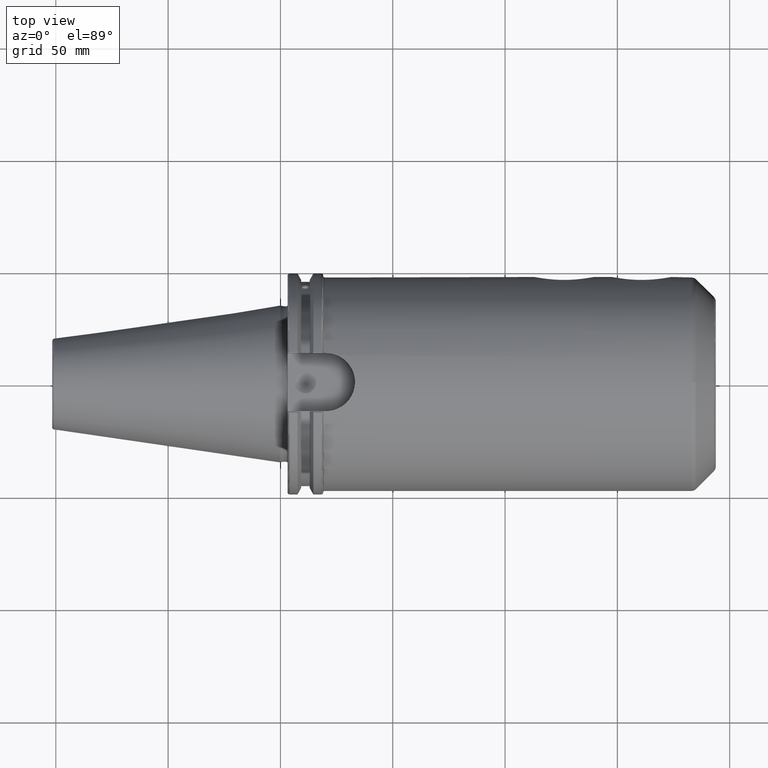
[diagram: clean part render]
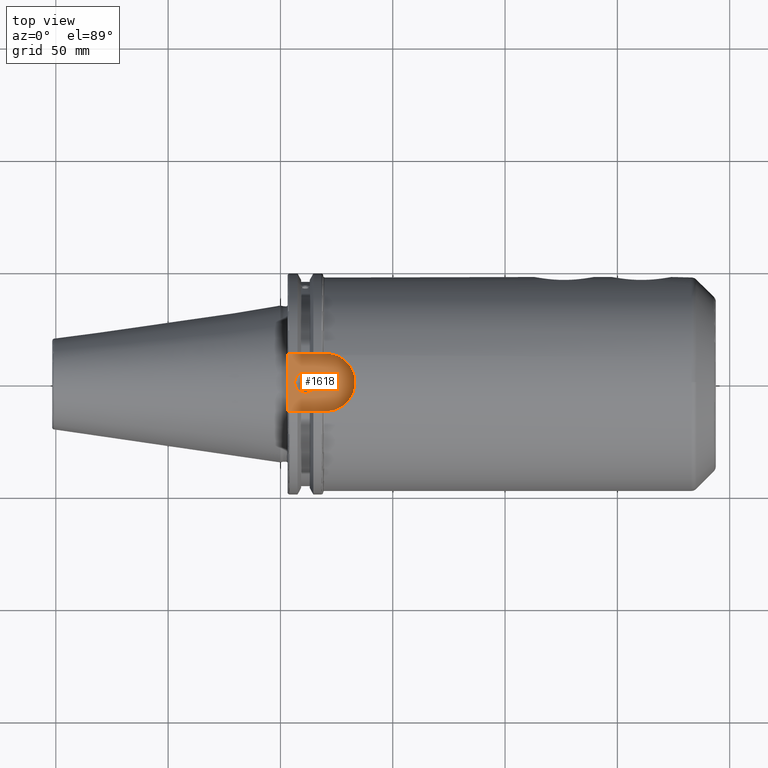
[diagram: same view with one face highlighted and labeled with its STEP entity id]
A machine part, top view. The second image highlights one B-rep face of the part: STEP entity #1618.
In plain terms, the highlighted planar face has unit normal (0, 0, 1).
Its self-contained STEP definition (entity closure, byte-faithful):
#81=PLANE('',#1810);
#102=FACE_BOUND('',#498,.T.);
#155=LINE('',#3178,#243);
#167=LINE('',#3282,#255);
#182=LINE('',#3407,#270);
#243=VECTOR('',#2084,10.);
#255=VECTOR('',#2116,10.);
#270=VECTOR('',#2173,10.);
#391=FACE_OUTER_BOUND('',#497,.T.);
#497=EDGE_LOOP('',(#1506,#1507,#1508,#1509));
#498=EDGE_LOOP('',(#1510));
#525=CIRCLE('',#1678,12.95);
#577=CIRCLE('',#1795,4.7625);
#674=VERTEX_POINT('',#2581);
#675=VERTEX_POINT('',#2583);
#756=VERTEX_POINT('',#3175);
#757=VERTEX_POINT('',#3177);
#799=VERTEX_POINT('',#3430);
#847=EDGE_CURVE('',#675,#674,#525,.T.);
#958=EDGE_CURVE('',#756,#757,#155,.T.);
#984=EDGE_CURVE('',#756,#675,#167,.T.);
#1021=EDGE_CURVE('',#674,#757,#182,.T.);
#1030=EDGE_CURVE('',#799,#799,#577,.T.);
#1506=ORIENTED_EDGE('',*,*,#958,.F.);
#1507=ORIENTED_EDGE('',*,*,#984,.T.);
#1508=ORIENTED_EDGE('',*,*,#847,.T.);
#1509=ORIENTED_EDGE('',*,*,#1021,.T.);
#1510=ORIENTED_EDGE('',*,*,#1030,.T.);
#1618=ADVANCED_FACE('',(#391,#102),#81,.T.);
#1678=AXIS2_PLACEMENT_3D('',#2584,#1893,#1894);
#1795=AXIS2_PLACEMENT_3D('',#3431,#2201,#2202);
#1810=AXIS2_PLACEMENT_3D('',#3447,#2232,#2233);
#1893=DIRECTION('center_axis',(0.,0.,1.));
#1894=DIRECTION('ref_axis',(-6.85852061544498E-16,-1.,0.));
#2084=DIRECTION('',(0.,1.,0.));
#2116=DIRECTION('',(1.,-5.20925759354912E-16,0.));
#2173=DIRECTION('',(-1.,3.90694319516184E-16,0.));
#2201=DIRECTION('center_axis',(0.,0.,-1.));
#2202=DIRECTION('ref_axis',(1.,0.,0.));
#2232=DIRECTION('center_axis',(0.,0.,1.));
#2233=DIRECTION('ref_axis',(1.,0.,0.));
#2581=CARTESIAN_POINT('',(20.225,12.95,37.719));
#2583=CARTESIAN_POINT('',(20.225,-12.95,37.719));
#2584=CARTESIAN_POINT('Origin',(20.225,-8.88178419700125E-15,37.719));
#3175=CARTESIAN_POINT('',(3.175,-12.95,37.719));
#3177=CARTESIAN_POINT('',(3.175,12.95,37.719));
#3178=CARTESIAN_POINT('',(3.175,24.60625,37.719));
#3282=CARTESIAN_POINT('',(3.175,-12.95,37.719));
#3407=CARTESIAN_POINT('',(20.225,12.95,37.719));
#3430=CARTESIAN_POINT('',(6.3645,-5.83238038093927E-16,37.719));
#3431=CARTESIAN_POINT('Origin',(11.127,0.,37.719));
#3447=CARTESIAN_POINT('Origin',(18.0875,0.,37.719));